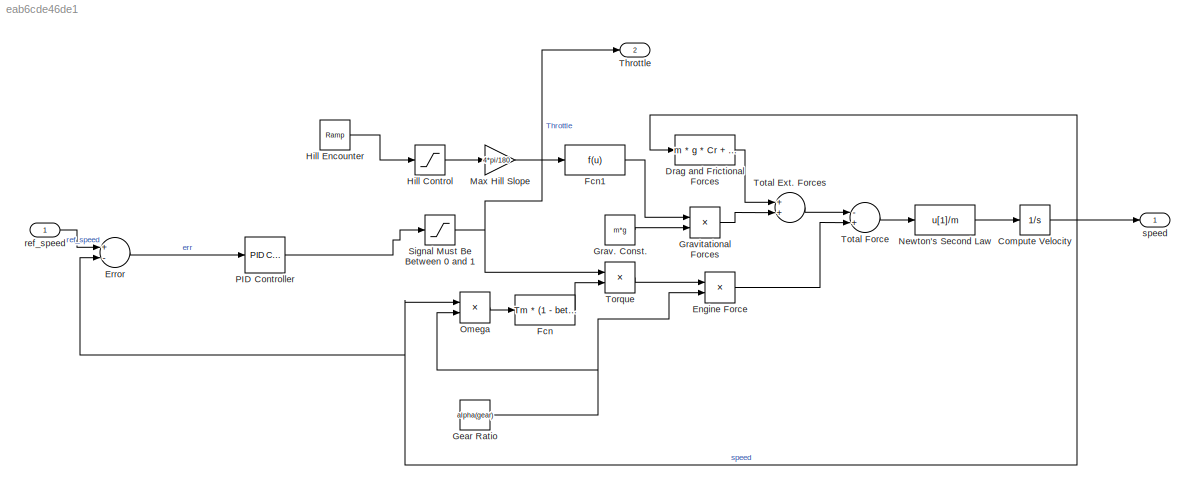
MODEL slx_eab6cde46de1
KIND model
CONFIG AbsTol = auto
CONFIG EnableMultiTasking = on
CONFIG FixedStep = 0.01
CONFIG MaxStep = 0.1
CONFIG MinStep = auto
CONFIG PreLoadFcn = m = 1000;\nalpha = [40, 25, 16, 12, 10];\nTm = 190;\nwm = 420;\nbeta = 0.4;\nCr = 0.01;\nrho = 1.3;\nCd = 0.32;\nA = 2.4;\ng = 9.8;\ntheta = 0;\ngear = 3;
CONFIG RelTol = 1e-3
CONFIG SampleTimeConstraint = Unconstrained
CONFIG Solver = FixedStepAuto
CONFIG SolverName = FixedStepAuto
CONFIG StartTime = 0.0
CONFIG StopTime = 60
BLOCK [Integrator] Compute Velocity
  InitialCondition = 20
  Ports = [1, 1]
BLOCK [Fcn] Drag and Frictional Forces
  Expr = m * g * Cr + 0.5 * rho * Cd * A * (u[1])^2
BLOCK [Product] Engine Force
  InputSameDT = off
  Inputs = **
  OutDataTypeStr = Inherit: Inherit via internal rule
  Ports = [2, 1]
  RndMeth = Floor
  SaturateOnIntegerOverflow = off
BLOCK [Sum] Error
  InputSameDT = off
  Inputs = +-
  OutDataTypeStr = Inherit: Inherit via internal rule
  Ports = [2, 1]
  SaturateOnIntegerOverflow = off
BLOCK [Fcn] Fcn
  Expr = Tm * (1 - beta * (u[1]/wm - 1)^2)
BLOCK [Fcn] Fcn1
BLOCK [Constant] Gear Ratio
  Value = alpha(gear)
BLOCK [Constant] Grav. Const.
  Value = m*g
BLOCK [Product] Gravitational Forces
  InputSameDT = off
  OutDataTypeStr = Inherit: Inherit via internal rule
  Ports = [2, 1]
  SaturateOnIntegerOverflow = off
BLOCK [Saturate] Hill Control
  InputPortMap = u0
  LowerLimit = 0
  Ports = [1, 1]
  UpperLimit = 1
BLOCK [Reference] Hill Encounter  REF=simulink/Sources/Ramp
  Ports = [0, 1]
  SourceBlock = simulink/Sources/Ramp
  SourceProductBaseCode = SL
  SourceProductName = Simulink
  SourceType = Ramp
BLOCK [Gain] Max Hill Slope
  Gain = 4*pi/180
  OutDataTypeStr = Inherit: Inherit via internal rule
  ParamDataTypeStr = Inherit: Inherit via internal rule
  SaturateOnIntegerOverflow = off
BLOCK [Fcn] Newton's Second Law
  Expr = u[1]/m
BLOCK [Product] Omega
  InputSameDT = off
  OutDataTypeStr = Inherit: Inherit via internal rule
  Ports = [2, 1]
  SaturateOnIntegerOverflow = off
BLOCK [Reference] PID Controller  REF=simulink/Continuous/PID Controller
  Ports = [1, 1]
  SourceBlock = simulink/Continuous/PID Controller
  SourceProductBaseCode = SL
  SourceProductName = Simulink
  SourceType = PID 1dof
BLOCK [Saturate] Signal Must Be Between 0 and 1
  InputPortMap = u0
  LowerLimit = 0
  Ports = [1, 1]
  UpperLimit = 1
BLOCK [Outport] Throttle
  IconDisplay = Port number
  Port = 2
BLOCK [Product] Torque
  InputSameDT = off
  OutDataTypeStr = Inherit: Inherit via internal rule
  Ports = [2, 1]
  SaturateOnIntegerOverflow = off
BLOCK [Sum] Total Ext. Forces
  InputSameDT = off
  OutDataTypeStr = Inherit: Inherit via internal rule
  Ports = [2, 1]
  SaturateOnIntegerOverflow = off
BLOCK [Sum] Total Force
  InputSameDT = off
  Inputs = -+
  OutDataTypeStr = Inherit: Inherit via internal rule
  Ports = [2, 1]
  SaturateOnIntegerOverflow = off
BLOCK [Inport] ref_speed
  IconDisplay = Port number
BLOCK [Outport] speed
  IconDisplay = Port number
NET Compute Velocity:1 -> Drag and Frictional Forces:1, Error:2, Omega:1, speed:1
LINE Drag and Frictional Forces:1 -> Total Ext. Forces:1
LINE Engine Force:1 -> Total Force:2
LINE Error:1 -> PID Controller:1
LINE Fcn1:1 -> Gravitational Forces:1
LINE Fcn:1 -> Torque:2
NET Gear Ratio:1 -> Engine Force:2, Omega:2
LINE Grav. Const.:1 -> Gravitational Forces:2
LINE Gravitational Forces:1 -> Total Ext. Forces:2
LINE Hill Control:1 -> Max Hill Slope:1
LINE Hill Encounter:1 -> Hill Control:1
LINE Max Hill Slope:1 -> Fcn1:1
LINE Newton's Second Law:1 -> Compute Velocity:1
LINE Omega:1 -> Fcn:1
LINE PID Controller:1 -> Signal Must Be Between 0 and 1:1
NET Signal Must Be Between 0 and 1:1 -> Throttle:1, Torque:1
LINE Torque:1 -> Engine Force:1
LINE Total Ext. Forces:1 -> Total Force:1
LINE Total Force:1 -> Newton's Second Law:1
LINE ref_speed:1 -> Error:1
note: NET lines group one-source signal fan-out (src -> all destinations, sorted); 1:1 wires keep LINE
